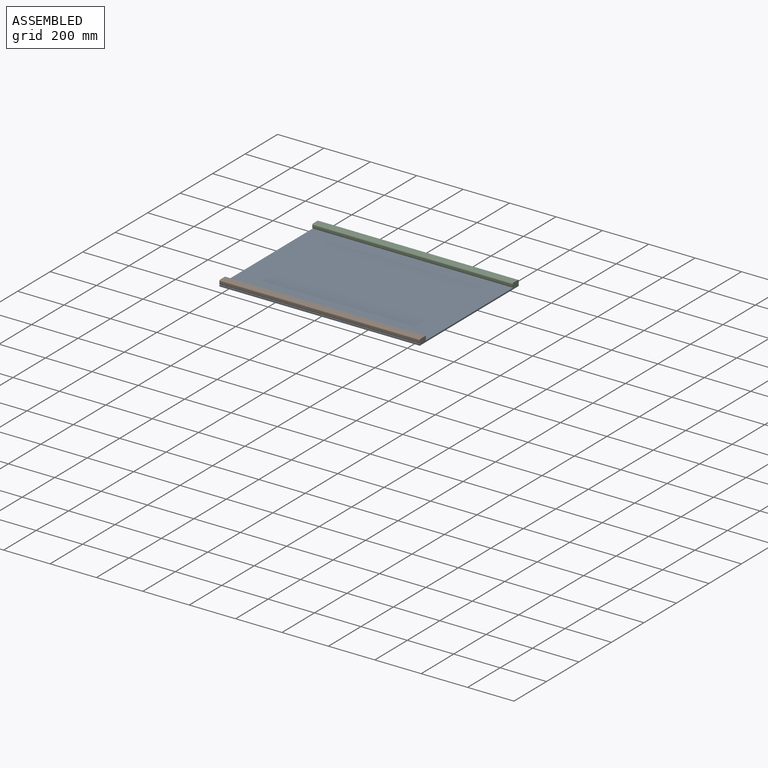
[diagram: assembled view]
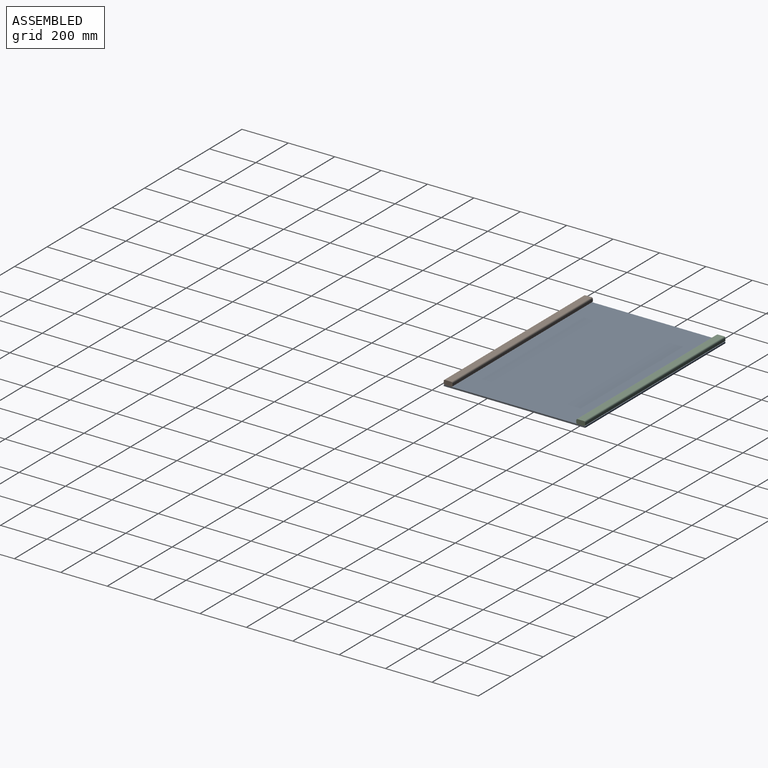
[diagram: assembled view, second angle]
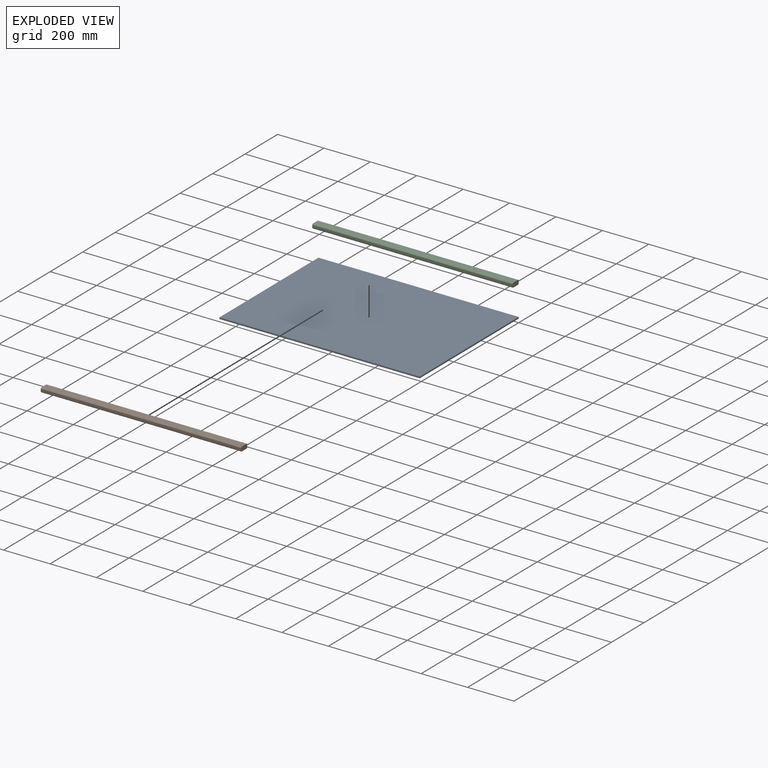
[diagram: exploded view]
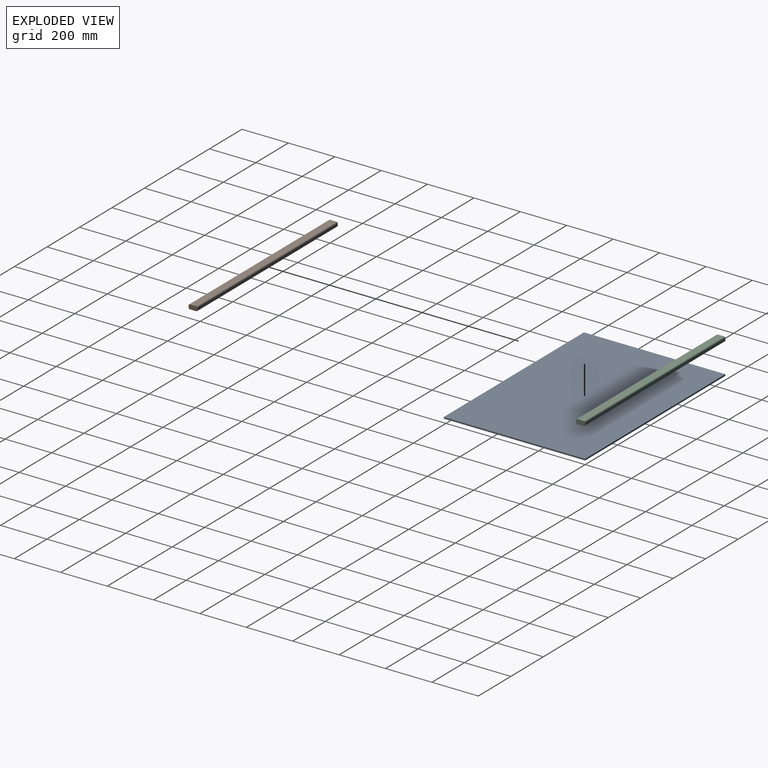
[diagram: exploded view, second angle]
ASSEMBLY  parts=3 mates=6
PART A: 6 faces, bbox 609.6x863.6x6.4 mm
  f0: plane 609.6x6.35mm, normal (0,1,0), area 3871mm2, adj f1,f3,f4,f5
  f1: plane 863.6x6.35mm, normal (-1,0,0), area 5483.9mm2, adj f0,f2,f4,f5
  f2: plane 609.6x6.35mm, normal (0,-1,0), area 3871mm2, adj f1,f3,f4,f5
  f3: plane 863.6x6.35mm, normal (1,0,0), area 5483.9mm2, adj f0,f2,f4,f5
  f4: plane 863.6x609.6mm, normal (0,0,1), area 526450.6mm2, adj f0,f1,f2,f3
  f5: plane 863.6x609.6mm, normal (0,0,-1), area 526450.6mm2, adj f0,f1,f2,f3
PART B: 10 faces, bbox 19.1x38.1x863.6 mm
  f0: plane 863.6x8.89mm, normal (0,1,0), area 7677.4mm2, adj f4,f5,f6,f9
  f1: plane 863.6x27.94mm, normal (-1,0,0), area 24129mm2, adj f4,f5,f6,f7
  f2: plane 863.6x8.89mm, normal (0,-1,0), area 7677.4mm2, adj f4,f5,f7,f8
  f3: plane 863.6x27.94mm, normal (1,0,0), area 24129mm2, adj f4,f5,f8,f9
  f4: plane 38.1x19.05mm, normal (0,0,1), area 703.7mm2, adj f0,f1,f2,f3,f6,f7,f8,f9
  f5: plane 38.1x19.05mm, normal (0,0,-1), area 703.7mm2, adj f0,f1,f2,f3,f6,f7,f8,f9
  f6: cylinder r=5.08mm len=863.6mm, axis (0,0,1), area 6891.2mm2, adj f0,f1,f4,f5
  f7: cylinder r=5.08mm len=863.6mm, axis (0,0,-1), area 6891.2mm2, adj f1,f2,f4,f5
  f8: cylinder r=5.08mm len=863.6mm, axis (0,0,1), area 6891.2mm2, adj f2,f3,f4,f5
  f9: cylinder r=5.08mm len=863.6mm, axis (0,0,-1), area 6891.2mm2, adj f0,f3,f4,f5
PART C: same geometry as B
PLACE A rot(axis=(0,0,-1),90deg) t=(-431.8,-304.8,0)mm
PLACE B rot(axis=(0,1,0),90deg) t=(-431.8,-590.55,15.88)mm
PLACE C rot(axis=(0,1,0),90deg) t=(-431.8,-19.05,15.88)mm
MATE planar C.f4 <-> A.f0  axis (1,0,0) through (0,-19.05,15.88)mm
MATE planar B.f2 <-> A.f3  axis (0,-1,0) through (-431.8,-609.6,15.88)mm
MATE planar B.f4 <-> A.f0  axis (1,0,0) through (0,-590.55,15.88)mm
MATE planar C.f0 <-> A.f1  axis (0,1,0) through (-431.8,0,15.88)mm
MATE planar C.f3 <-> A.f4  axis (0,0,-1) through (-431.8,-19.05,6.35)mm
MATE planar B.f3 <-> A.f4  axis (0,0,-1) through (-431.8,-590.55,6.35)mm
